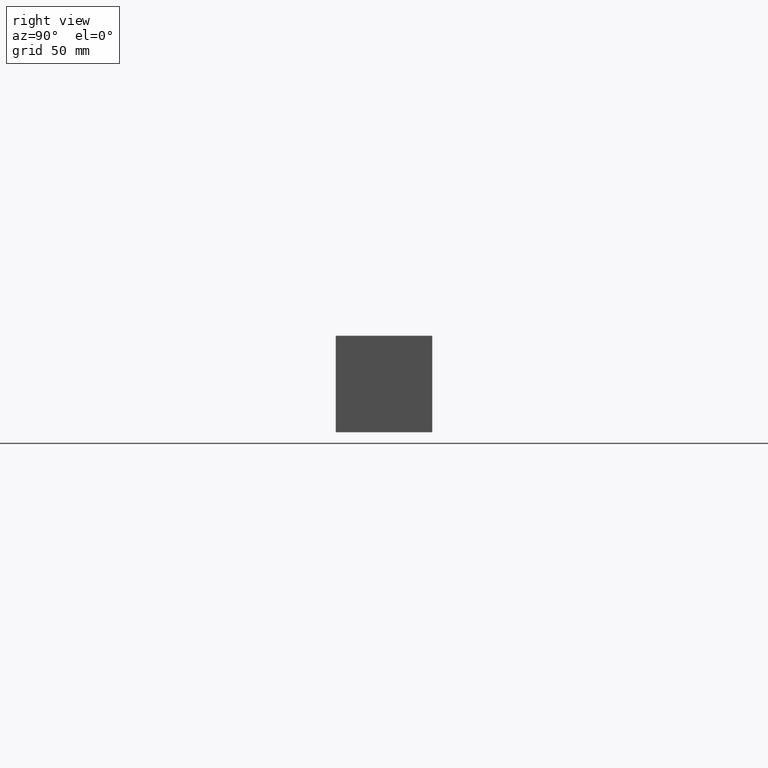
[diagram: clean part render]
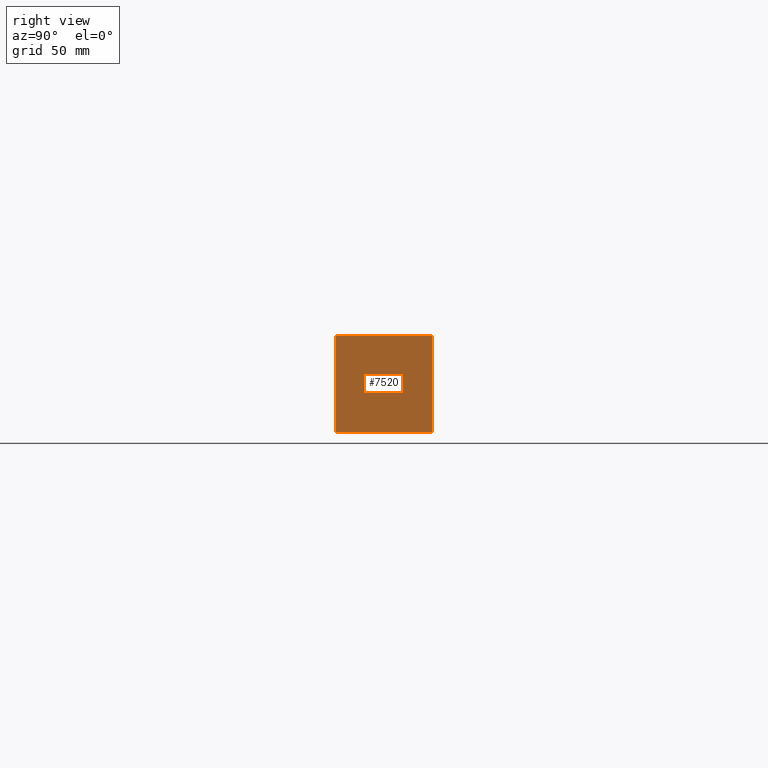
[diagram: same view with one face highlighted and labeled with its STEP entity id]
A machine part, right view. The second image highlights one B-rep face of the part: STEP entity #7520.
In plain terms, the highlighted planar face has unit normal (1, 0, 0).
Its self-contained STEP definition (entity closure, byte-faithful):
#460=PLANE('',#7917);
#844=FACE_OUTER_BOUND('',#1283,.T.);
#1283=EDGE_LOOP('',(#6682,#6683,#6684,#6685));
#1554=LINE('',#11723,#2245);
#1986=LINE('',#12988,#2677);
#1987=LINE('',#12991,#2678);
#1988=LINE('',#12992,#2679);
#2245=VECTOR('',#8298,10.);
#2677=VECTOR('',#9368,10.);
#2678=VECTOR('',#9371,10.);
#2679=VECTOR('',#9372,10.);
#3224=VERTEX_POINT('',#11720);
#3225=VERTEX_POINT('',#11722);
#3611=VERTEX_POINT('',#12986);
#3612=VERTEX_POINT('',#12990);
#4082=EDGE_CURVE('',#3224,#3225,#1554,.T.);
#4644=EDGE_CURVE('',#3611,#3225,#1986,.T.);
#4645=EDGE_CURVE('',#3612,#3611,#1987,.T.);
#4646=EDGE_CURVE('',#3612,#3224,#1988,.T.);
#6682=ORIENTED_EDGE('',*,*,#4645,.T.);
#6683=ORIENTED_EDGE('',*,*,#4644,.T.);
#6684=ORIENTED_EDGE('',*,*,#4082,.F.);
#6685=ORIENTED_EDGE('',*,*,#4646,.F.);
#7520=ADVANCED_FACE('',(#844),#460,.T.);
#7917=AXIS2_PLACEMENT_3D('',#12989,#9369,#9370);
#8298=DIRECTION('',(0.,1.,0.));
#9368=DIRECTION('',(0.,0.,1.));
#9369=DIRECTION('center_axis',(1.,0.,0.));
#9370=DIRECTION('ref_axis',(0.,1.,0.));
#9371=DIRECTION('',(0.,1.,0.));
#9372=DIRECTION('',(0.,0.,1.));
#11720=CARTESIAN_POINT('',(377.825,0.,50.8));
#11722=CARTESIAN_POINT('',(377.825,50.8,50.8));
#11723=CARTESIAN_POINT('',(377.825,0.,50.8));
#12986=CARTESIAN_POINT('',(377.825,50.8,0.));
#12988=CARTESIAN_POINT('',(377.825,50.8,0.));
#12989=CARTESIAN_POINT('Origin',(377.825,0.,0.));
#12990=CARTESIAN_POINT('',(377.825,0.,0.));
#12991=CARTESIAN_POINT('',(377.825,0.,0.));
#12992=CARTESIAN_POINT('',(377.825,0.,0.));